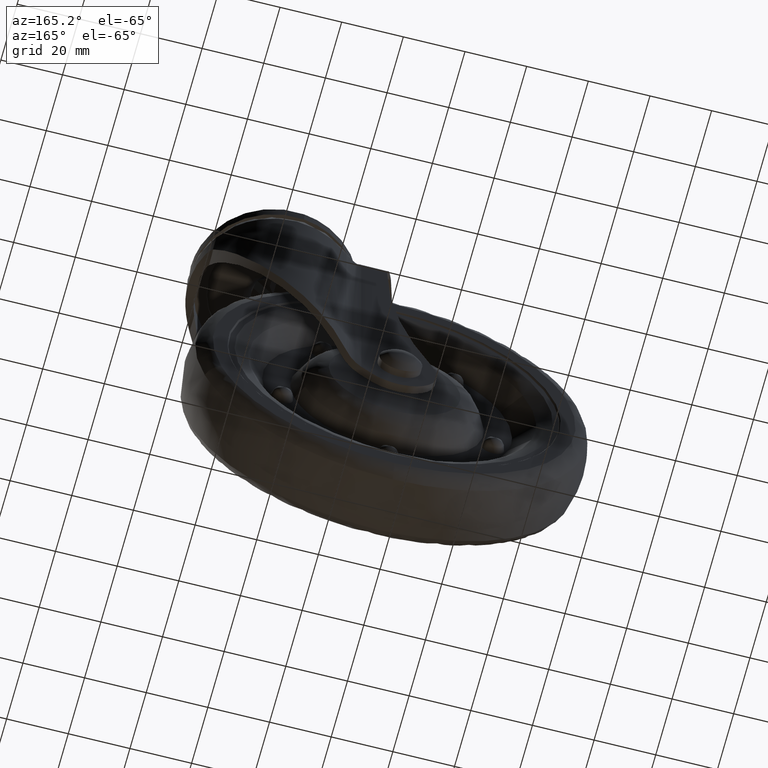
[diagram: clean part render]
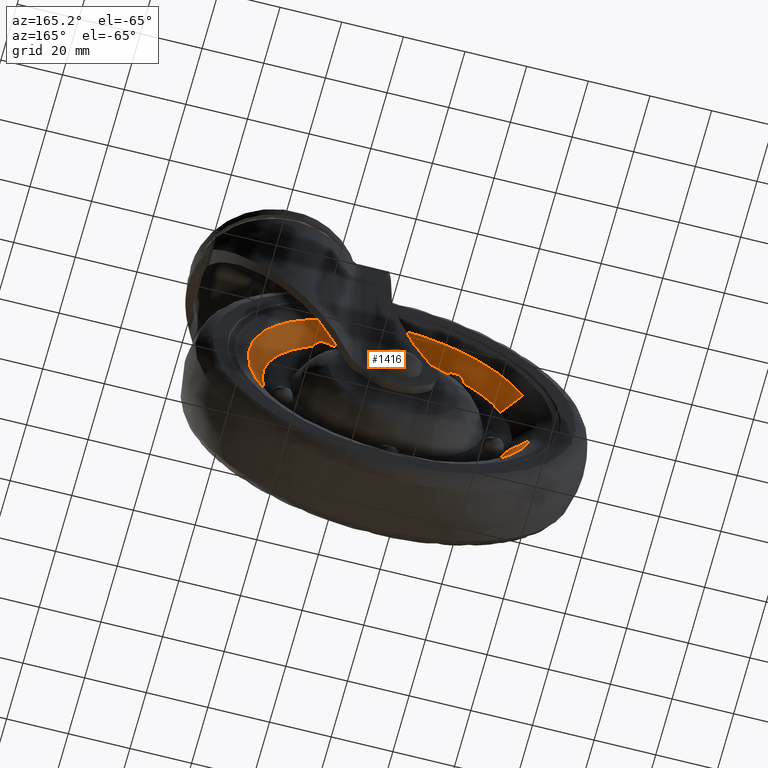
[diagram: same view with one face highlighted and labeled with its STEP entity id]
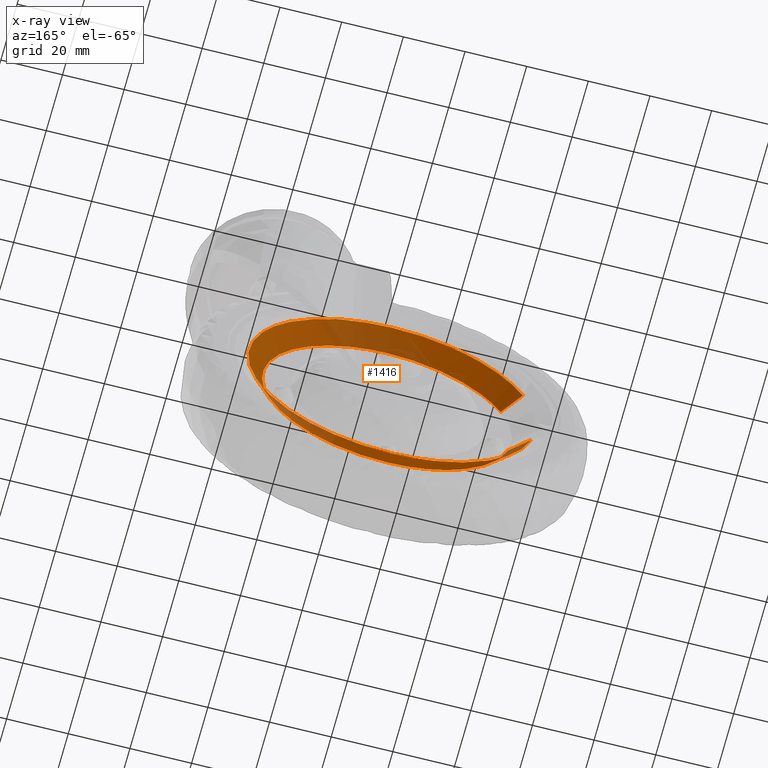
[diagram: x-ray of the same camera — body ghosted, the highlighted face saturated]
A machine part, auxiliary view. The second image highlights one B-rep face of the part: STEP entity #1416.
The next image is the same camera in x-ray: the body ghosted, the highlighted face saturated — about 21% of this face is hidden behind the body in this view.
In plain terms, the highlighted face is a freeform B-spline surface patch.
Its self-contained STEP definition (entity closure, byte-faithful):
#1250=CARTESIAN_POINT('',(-72.652680416889339,3.620442327092068,-69.057410241862712));
#1251=CARTESIAN_POINT('',(-64.627369607344534,3.620442327092069,-51.696080444145231));
#1252=CARTESIAN_POINT('',(-46.110134671120541,3.620442327092068,-46.907197875988480));
#1253=CARTESIAN_POINT('',(-7.017144547109011,3.620442327092068,-36.797063204867946));
#1254=CARTESIAN_POINT('',(3.092990124011529,3.620442327092068,-75.890053328879475));
#1255=CARTESIAN_POINT('',(13.203124795132068,3.620442327092068,-114.983043452891000));
#1256=CARTESIAN_POINT('',(-25.889865328879459,3.620442327092068,-125.093178124011500));
#1257=CARTESIAN_POINT('',(-64.982855452890988,3.620442327092068,-135.203312795132060));
#1258=CARTESIAN_POINT('',(-75.092990124011521,3.620442327092068,-96.110322671120542));
#1259=CARTESIAN_POINT('',(-78.541501249106076,10.107980098528984,-66.335290563767842));
#1260=CARTESIAN_POINT('',(-69.226799951806242,10.107980098528984,-46.184594219731601));
#1261=CARTESIAN_POINT('',(-47.734484404636262,10.107980098528980,-40.626303490707947));
#1262=CARTESIAN_POINT('',(-2.360599895344208,10.107980098528984,-28.891819086071695));
#1263=CARTESIAN_POINT('',(9.373884509292054,10.107980098528980,-74.265703595363746));
#1264=CARTESIAN_POINT('',(21.108368913928313,10.107980098528984,-119.639588104655790));
#1265=CARTESIAN_POINT('',(-24.265515595363741,10.107980098528980,-131.374072509292090));
#1266=CARTESIAN_POINT('',(-69.639400104655792,10.107980098528984,-143.108556913928310));
#1267=CARTESIAN_POINT('',(-81.373884509292054,10.107980098528980,-97.734672404636271));
#1275=(BOUNDED_SURFACE()B_SPLINE_SURFACE(2,1,((#1250,#1259),(#1251,#1260),(#1252,#1261),(#1253,#1262),(#1254,#1263),(#1255,#1264),(#1256,#1265),(#1257,#1266),(#1258,#1267)),.UNSPECIFIED.,.F.,.F.,.U.)B_SPLINE_SURFACE_WITH_KNOTS((3,2,2,2,3),(2,2),(0.0,43.484722503758242,121.136012689040800,198.787302874323390,276.438593059605980),(0.0,9.174763902773844),.UNSPECIFIED.)GEOMETRIC_REPRESENTATION_ITEM()RATIONAL_B_SPLINE_SURFACE(((0.855662221768731,0.855662221768731),(0.835979797464467,0.835979797464467),(1.0,1.0),(0.707106781186548,0.707106781186548),(1.0,1.0),(0.707106781186548,0.707106781186548),(1.0,1.0),(0.707106781186548,0.707106781186548),(1.0,1.0)))REPRESENTATION_ITEM('')SURFACE());
#1276=CARTESIAN_POINT('',(-64.762769082680691,9.949747469786283,-49.198231668176113));
#1277=VERTEX_POINT('',#1276);
#1278=CARTESIAN_POINT('',(-78.397871471490078,9.949747468653490,-66.401683727168603));
#1279=VERTEX_POINT('',#1278);
#1280=CARTESIAN_POINT('',(-64.762769082680705,9.949747469786283,-49.198231668176106));
#1281=CARTESIAN_POINT('',(-73.659831931260101,9.949747469052319,-56.151779516428093));
#1282=CARTESIAN_POINT('',(-78.397871471490078,9.949747468653490,-66.401683727168603));
#1290=(BOUNDED_CURVE()B_SPLINE_CURVE(2,(#1280,#1281,#1282),.UNSPECIFIED.,.F.,.U.)B_SPLINE_CURVE_WITH_KNOTS((3,3),(0.606567917885342,0.678730602234984),.UNSPECIFIED.)CURVE()GEOMETRIC_REPRESENTATION_ITEM()RATIONAL_B_SPLINE_CURVE((0.856737647417282,0.844271094878632,0.880611827929243))REPRESENTATION_ITEM(''));
#1291=EDGE_CURVE('',#1277,#1279,#1290,.T.);
#1292=ORIENTED_EDGE('',*,*,#1291,.F.);
#1293=CARTESIAN_POINT('',(-36.0,9.949747468305851,-39.291721154953713));
#1294=VERTEX_POINT('',#1293);
#1295=CARTESIAN_POINT('',(-36.0,9.949747468305851,-39.291721154953713));
#1296=CARTESIAN_POINT('',(-52.087391189518861,9.949747468305851,-39.291721154953706));
#1297=CARTESIAN_POINT('',(-64.762769082680691,9.949747469786283,-49.198231668176106));
#1305=(BOUNDED_CURVE()B_SPLINE_CURVE(2,(#1295,#1296,#1297),.UNSPECIFIED.,.F.,.U.)B_SPLINE_CURVE_WITH_KNOTS((3,3),(0.500000000000000,0.606567917885343),.UNSPECIFIED.)CURVE()GEOMETRIC_REPRESENTATION_ITEM()RATIONAL_B_SPLINE_CURVE((1.0,0.875147918033257,0.856737647417282))REPRESENTATION_ITEM(''));
#1306=EDGE_CURVE('',#1294,#1277,#1305,.T.);
#1307=ORIENTED_EDGE('',*,*,#1306,.F.);
#1308=CARTESIAN_POINT('',(-2.765259410829149,9.949747469957352,-53.180485180815531));
#1309=VERTEX_POINT('',#1308);
#1310=CARTESIAN_POINT('',(-2.765259410829149,9.949747469957353,-53.180485180815523));
#1311=CARTESIAN_POINT('',(-16.480579580359091,9.949747468305850,-39.291721154953713));
#1312=CARTESIAN_POINT('',(-36.0,9.949747468305851,-39.291721154953713));
#1320=(BOUNDED_CURVE()B_SPLINE_CURVE(2,(#1310,#1311,#1312),.UNSPECIFIED.,.F.,.U.)B_SPLINE_CURVE_WITH_KNOTS((3,3),(0.374051937432044,0.500000000000000),.UNSPECIFIED.)CURVE()GEOMETRIC_REPRESENTATION_ITEM()RATIONAL_B_SPLINE_CURVE((0.853561814883003,0.852442666204613,1.0))REPRESENTATION_ITEM(''));
#1321=EDGE_CURVE('',#1309,#1294,#1320,.T.);
#1322=ORIENTED_EDGE('',*,*,#1321,.F.);
#1323=CARTESIAN_POINT('',(-36.0,9.949747468305851,-132.708654845046310));
#1324=VERTEX_POINT('',#1323);
#1325=CARTESIAN_POINT('',(-36.0,9.949747468305851,-132.708654845046310));
#1326=CARTESIAN_POINT('',(10.708466845046297,9.949747468305851,-132.708654845046280));
#1327=CARTESIAN_POINT('',(10.708466845046299,9.949747468305851,-86.000188000000009));
#1328=CARTESIAN_POINT('',(10.708466845046299,9.949747468305851,-66.824600102503908));
#1329=CARTESIAN_POINT('',(-2.765259410829149,9.949747469957353,-53.180485180815523));
#1337=(BOUNDED_CURVE()B_SPLINE_CURVE(2,(#1325,#1326,#1327,#1328,#1329),.UNSPECIFIED.,.F.,.U.)B_SPLINE_CURVE_WITH_KNOTS((3,2,3),(0.0,0.250000000000000,0.374051937432044),.UNSPECIFIED.)CURVE()GEOMETRIC_REPRESENTATION_ITEM()RATIONAL_B_SPLINE_CURVE((1.0,0.707106781186547,1.0,0.854664114981934,0.853561814883003))REPRESENTATION_ITEM(''));
#1338=EDGE_CURVE('',#1324,#1309,#1337,.T.);
#1339=ORIENTED_EDGE('',*,*,#1338,.F.);
#1340=CARTESIAN_POINT('',(-81.220691978313596,9.949747498035059,-97.695054172577059));
#1341=VERTEX_POINT('',#1340);
#1342=CARTESIAN_POINT('',(-81.220691978313596,9.949747498035059,-97.695054172577059));
#1343=CARTESIAN_POINT('',(-72.165559044284663,9.949747468305851,-132.708654845046250));
#1344=CARTESIAN_POINT('',(-36.0,9.949747468305851,-132.708654845046310));
#1352=(BOUNDED_CURVE()B_SPLINE_CURVE(2,(#1342,#1343,#1344),.UNSPECIFIED.,.F.,.U.)B_SPLINE_CURVE_WITH_KNOTS((3,3),(0.792726230048060,1.0),.UNSPECIFIED.)CURVE()GEOMETRIC_REPRESENTATION_ITEM()RATIONAL_B_SPLINE_CURVE((0.916996153955973,0.757163673372708,1.0))REPRESENTATION_ITEM(''));
#1353=EDGE_CURVE('',#1341,#1324,#1352,.T.);
#1354=ORIENTED_EDGE('',*,*,#1353,.F.);
#1355=CARTESIAN_POINT('',(-75.242446266431017,3.774815623261443,-96.148974657657917));
#1356=VERTEX_POINT('',#1355);
#1357=CARTESIAN_POINT('',(-75.242446266431017,3.774815623261443,-96.148974657657917));
#1358=CARTESIAN_POINT('',(-81.220691978313596,9.949747498035059,-97.695054172577059));
#1359=QUASI_UNIFORM_CURVE('',1,(#1357,#1358),.UNSPECIFIED.,.F.,.U.);
#1360=EDGE_CURVE('',#1356,#1341,#1359,.T.);
#1361=ORIENTED_EDGE('',*,*,#1360,.F.);
#1362=CARTESIAN_POINT('',(-36.0,3.774815623259515,-126.533722999999990));
#1363=VERTEX_POINT('',#1362);
#1364=CARTESIAN_POINT('',(-75.242446266431017,3.774815623261443,-96.148974657657917));
#1365=CARTESIAN_POINT('',(-67.384416048843477,3.774815623259515,-126.533723000000010));
#1366=CARTESIAN_POINT('',(-36.0,3.774815623259515,-126.533722999999990));
#1374=(BOUNDED_CURVE()B_SPLINE_CURVE(2,(#1364,#1365,#1366),.UNSPECIFIED.,.F.,.U.)B_SPLINE_CURVE_WITH_KNOTS((3,3),(0.792726229710559,1.0),.UNSPECIFIED.)CURVE()GEOMETRIC_REPRESENTATION_ITEM()RATIONAL_B_SPLINE_CURVE((0.916996154476478,0.757163672977302,1.0))REPRESENTATION_ITEM(''));
#1375=EDGE_CURVE('',#1356,#1363,#1374,.T.);
#1376=ORIENTED_EDGE('',*,*,#1375,.T.);
#1377=CARTESIAN_POINT('',(-36.0,3.774815623259515,-45.466653000000001));
#1378=VERTEX_POINT('',#1377);
#1379=CARTESIAN_POINT('',(-36.0,3.774815623259515,-126.533722999999990));
#1380=CARTESIAN_POINT('',(4.533535000000005,3.774815623259515,-126.533723000000020));
#1381=CARTESIAN_POINT('',(4.533535000000005,3.774815623259515,-86.000188000000009));
#1382=CARTESIAN_POINT('',(4.533535000000005,3.774815623259515,-45.466653000000001));
#1383=CARTESIAN_POINT('',(-36.0,3.774815623259515,-45.466653000000001));
#1391=(BOUNDED_CURVE()B_SPLINE_CURVE(2,(#1379,#1380,#1381,#1382,#1383),.UNSPECIFIED.,.F.,.U.)B_SPLINE_CURVE_WITH_KNOTS((3,2,3),(0.0,0.250000000000000,0.500000000000000),.UNSPECIFIED.)CURVE()GEOMETRIC_REPRESENTATION_ITEM()RATIONAL_B_SPLINE_CURVE((1.0,0.707106781186547,1.0,0.707106781186547,1.0))REPRESENTATION_ITEM(''));
#1392=EDGE_CURVE('',#1363,#1378,#1391,.T.);
#1393=ORIENTED_EDGE('',*,*,#1392,.T.);
#1394=CARTESIAN_POINT('',(-72.792807027980444,3.774815623265805,-68.992636424346102));
#1395=VERTEX_POINT('',#1394);
#1396=CARTESIAN_POINT('',(-36.0,3.774815623259515,-45.466653000000001));
#1397=CARTESIAN_POINT('',(-61.917872257292856,3.774815623259515,-45.466653000000001));
#1398=CARTESIAN_POINT('',(-72.792807027980444,3.774815623265805,-68.992636424346102));
#1406=(BOUNDED_CURVE()B_SPLINE_CURVE(2,(#1396,#1397,#1398),.UNSPECIFIED.,.F.,.U.)B_SPLINE_CURVE_WITH_KNOTS((3,3),(0.500000000000000,0.678730602234083),.UNSPECIFIED.)CURVE()GEOMETRIC_REPRESENTATION_ITEM()RATIONAL_B_SPLINE_CURVE((1.0,0.790604074444770,0.880611827928336))REPRESENTATION_ITEM(''));
#1407=EDGE_CURVE('',#1378,#1395,#1406,.T.);
#1408=ORIENTED_EDGE('',*,*,#1407,.T.);
#1409=CARTESIAN_POINT('',(-72.792807027980444,3.774815623265805,-68.992636424346102));
#1410=CARTESIAN_POINT('',(-78.397871471490078,9.949747468653490,-66.401683727168603));
#1411=QUASI_UNIFORM_CURVE('',1,(#1409,#1410),.UNSPECIFIED.,.F.,.U.);
#1412=EDGE_CURVE('',#1395,#1279,#1411,.T.);
#1413=ORIENTED_EDGE('',*,*,#1412,.T.);
#1414=EDGE_LOOP('',(#1292,#1307,#1322,#1339,#1354,#1361,#1376,#1393,#1408,#1413));
#1415=FACE_OUTER_BOUND('',#1414,.T.);
#1416=ADVANCED_FACE('',(#1415),#1275,.F.);